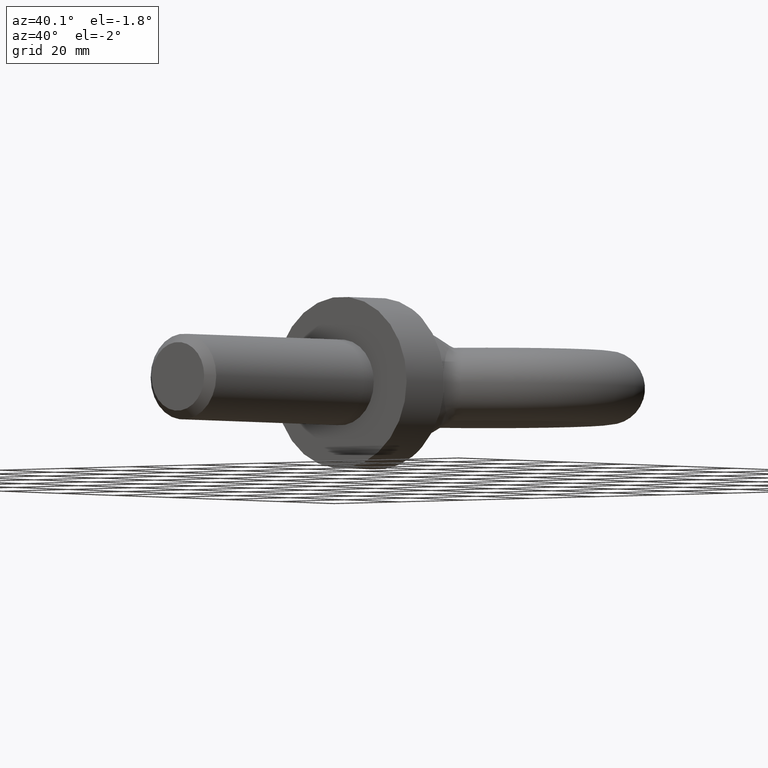
[diagram: clean part render]
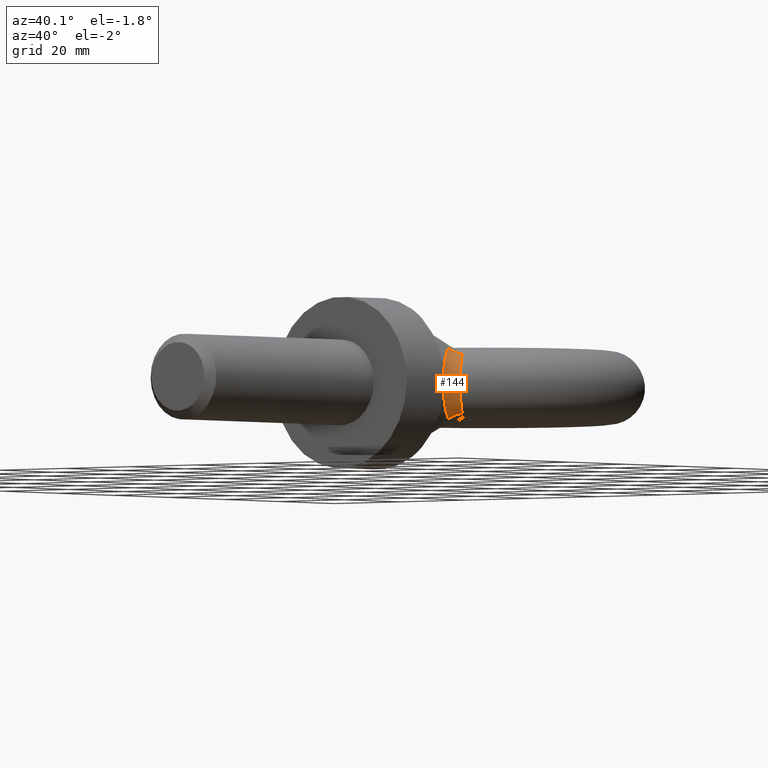
[diagram: same view with one face highlighted and labeled with its STEP entity id]
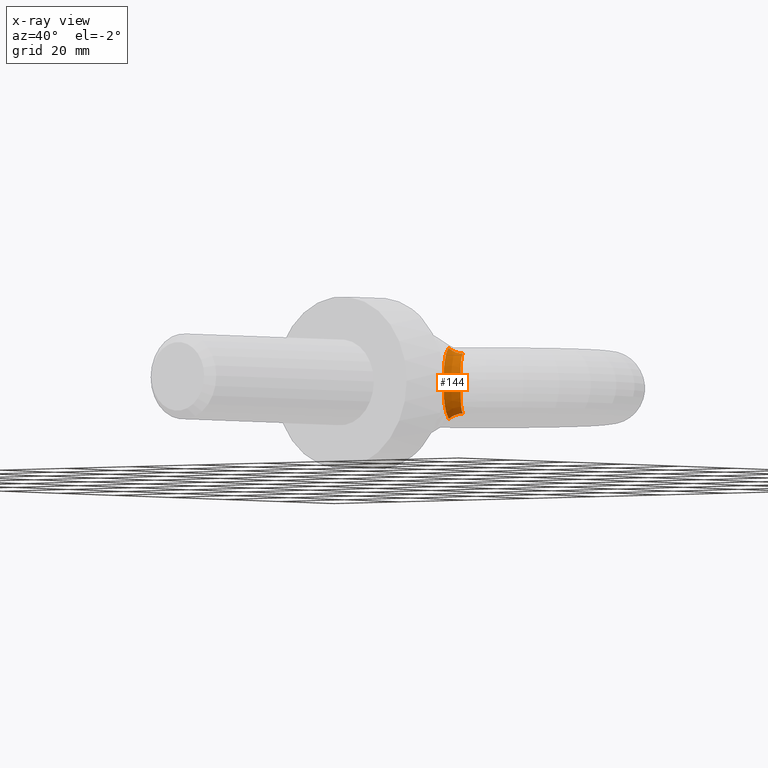
[diagram: x-ray of the same camera — body ghosted, the highlighted face saturated]
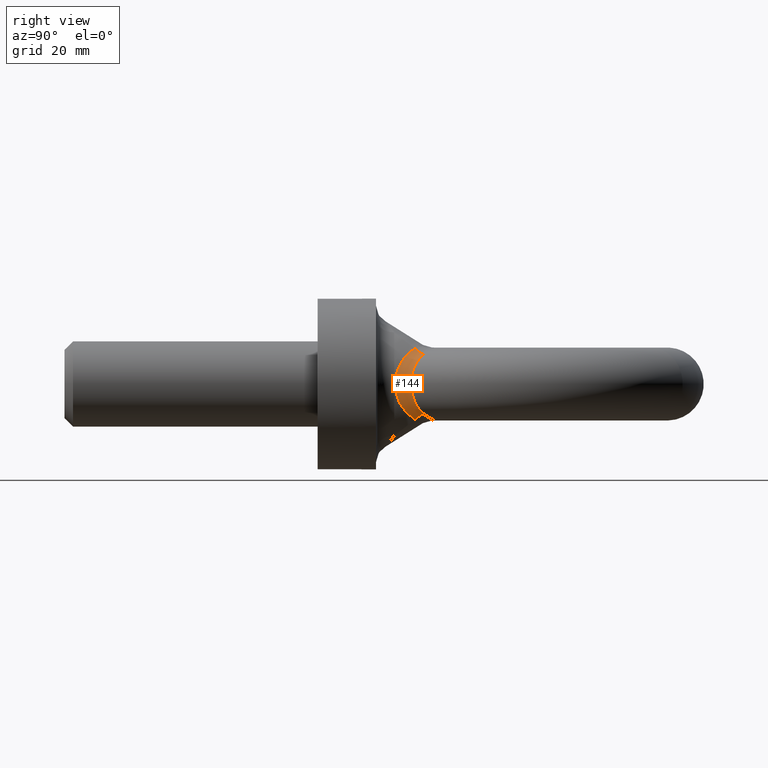
[diagram: same view with one face highlighted and labeled with its STEP entity id]
A machine part, auxiliary view. The second image highlights one B-rep face of the part: STEP entity #144.
The next image is the same camera in x-ray: the body ghosted, the highlighted face saturated — about 0% of this face is hidden behind the body in this view.
A second angle (right view) of the same face is appended — the face is thin or edge-on in the first view.
In plain terms, the highlighted face is a freeform B-spline surface patch.
Its self-contained STEP definition (entity closure, byte-faithful):
#99=(
BOUNDED_SURFACE()
B_SPLINE_SURFACE(3,2,((#1224,#1225,#1226),(#1227,#1228,#1229),(#1230,#1231,
#1232),(#1233,#1234,#1235),(#1236,#1237,#1238),(#1239,#1240,#1241),(#1242,
#1243,#1244),(#1245,#1246,#1247),(#1248,#1249,#1250),(#1251,#1252,#1253)),
 .UNSPECIFIED.,.F.,.F.,.F.)
B_SPLINE_SURFACE_WITH_KNOTS((4,2,2,2,4),(3,3),(0.,0.25,0.5,0.75,1.),(0.,
1.),.UNSPECIFIED.)
GEOMETRIC_REPRESENTATION_ITEM()
RATIONAL_B_SPLINE_SURFACE(((1.,0.91187943100821,1.),(1.,0.903082925011025,
1.),(1.,0.890240384914348,1.),(1.,0.870910150599799,1.),(1.,0.86452953673731,
1.),(1.,0.864561512550926,1.),(1.,0.870945627725839,1.),(1.,0.890274535773212,
1.),(1.,0.90317234339752,1.),(1.,0.91187943100821,1.)))
REPRESENTATION_ITEM('')
SURFACE()
);
#144=ADVANCED_FACE('',(#183),#99,.T.);
#183=FACE_OUTER_BOUND('',#221,.T.);
#221=EDGE_LOOP('',(#360,#361,#362,#363));
#248=B_SPLINE_CURVE_WITH_KNOTS('',3,(#778,#779,#780,#781,#782,#783,#784,
#785,#786,#787),.UNSPECIFIED.,.F.,.F.,(4,2,2,2,4),(0.,0.25,0.5,0.75,1.),
 .UNSPECIFIED.);
#266=B_SPLINE_CURVE_WITH_KNOTS('',3,(#1050,#1051,#1052,#1053,#1054,#1055,
#1056,#1057,#1058,#1059),.UNSPECIFIED.,.F.,.F.,(4,2,2,2,4),(0.,0.25,0.5,
0.75,1.),.UNSPECIFIED.);
#360=ORIENTED_EDGE('',*,*,#524,.T.);
#361=ORIENTED_EDGE('',*,*,#473,.F.);
#362=ORIENTED_EDGE('',*,*,#526,.F.);
#363=ORIENTED_EDGE('',*,*,#512,.F.);
#426=VERTEX_POINT('',#772);
#429=VERTEX_POINT('',#777);
#458=VERTEX_POINT('',#1060);
#459=VERTEX_POINT('',#1061);
#473=EDGE_CURVE('',#429,#426,#248,.T.);
#512=EDGE_CURVE('',#458,#459,#266,.T.);
#524=EDGE_CURVE('',#458,#426,#558,.T.);
#526=EDGE_CURVE('',#459,#429,#560,.T.);
#558=CIRCLE('',#612,4.25);
#560=CIRCLE('',#614,4.25);
#612=AXIS2_PLACEMENT_3D('',#1185,#713,#714);
#614=AXIS2_PLACEMENT_3D('',#1223,#717,#718);
#713=DIRECTION('',(-0.344335857522193,0.745149319782007,0.571126350690343));
#714=DIRECTION('',(0.,-0.608327696906129,0.793685966347449));
#717=DIRECTION('',(0.344335857522189,-0.745149319782009,0.571126350690343));
#718=DIRECTION('',(0.,-0.608327696906128,-0.79368596634745));
#772=CARTESIAN_POINT('',(13.7022846762782,22.7100967158181,8.26119813648309));
#777=CARTESIAN_POINT('',(13.7022846762782,22.7100967158181,-8.26119813648309));
#778=CARTESIAN_POINT('',(13.7022846762782,22.7100967158181,-8.2611981364831));
#779=CARTESIAN_POINT('',(14.2146930636233,21.3066939320552,-7.41130136873594));
#780=CARTESIAN_POINT('',(14.8070006621146,20.1492122750815,-6.24294902891903));
#781=CARTESIAN_POINT('',(15.7053641159949,18.5387990615339,-3.40047337433511));
#782=CARTESIAN_POINT('',(15.9991148607603,18.0911848385743,-1.71983696487196));
#783=CARTESIAN_POINT('',(16.0008808807515,18.0883725369367,1.70332808159318));
#784=CARTESIAN_POINT('',(15.7065916688516,18.5368496111433,3.39482524526136));
#785=CARTESIAN_POINT('',(14.8092039326661,20.1450125633304,6.23773510006701));
#786=CARTESIAN_POINT('',(14.2147992491964,21.306403107134,7.41112524598391));
#787=CARTESIAN_POINT('',(13.7022846762782,22.7100967158181,8.26119813648309));
#1050=CARTESIAN_POINT('',(16.1527065626072,24.8317989650207,6.97038592765761));
#1051=CARTESIAN_POINT('',(16.5958685658466,23.7898492856169,6.18485229933264));
#1052=CARTESIAN_POINT('',(17.137977679481,23.0371557646439,5.13002508564914));
#1053=CARTESIAN_POINT('',(17.9106908755622,22.034332785426,2.72525332469918));
#1054=CARTESIAN_POINT('',(18.1473949697428,21.7821572811045,1.3632933110221));
#1055=CARTESIAN_POINT('',(18.1461409546953,21.7835781414973,-1.3748120027495));
#1056=CARTESIAN_POINT('',(17.9092545312244,22.0360083275929,-2.73120740490868));
#1057=CARTESIAN_POINT('',(17.1364367350327,23.0393448592589,-5.1333309367098));
#1058=CARTESIAN_POINT('',(16.5961862641315,23.7891023226019,-6.18428915834897));
#1059=CARTESIAN_POINT('',(16.1527065626072,24.8317989650207,-6.97038592765761));
#1060=CARTESIAN_POINT('',(16.1527065626072,24.8317989650207,6.97038592765761));
#1061=CARTESIAN_POINT('',(16.1527065626072,24.8317989650207,-6.97038592765761));
#1185=CARTESIAN_POINT('',(17.3419540434146,22.7100967158181,10.4555788914864));
#1223=CARTESIAN_POINT('',(17.3419540434146,22.7100967158181,-10.4555788914864));
#1224=CARTESIAN_POINT('',(13.7022846762782,22.7100967158181,8.26119813648309));
#1225=CARTESIAN_POINT('',(14.4382998576057,23.9858879151552,7.04042006361812));
#1226=CARTESIAN_POINT('',(16.1527065626072,24.8317989650207,6.97038592765761));
#1227=CARTESIAN_POINT('',(14.2619115354349,21.1773702671861,7.33298331703784));
#1228=CARTESIAN_POINT('',(14.8465112656409,22.759940037465,6.17408565926715));
#1229=CARTESIAN_POINT('',(16.5944559465251,23.7931706120682,6.18735626966141));
#1230=CARTESIAN_POINT('',(14.874469609903,20.0214961936732,6.08032464821071));
#1231=CARTESIAN_POINT('',(15.2764674752301,21.9136311028499,5.03200722952523));
#1232=CARTESIAN_POINT('',(17.1379185008159,23.0372243736603,5.13027392208585));
#1233=CARTESIAN_POINT('',(15.7414335638469,18.481775862433,3.22915830497038));
#1234=CARTESIAN_POINT('',(15.8487076924889,20.8127527731547,2.59656805951675));
#1235=CARTESIAN_POINT('',(17.9108792775644,22.0340964724364,2.7246023196607));
#1236=CARTESIAN_POINT('',(16.0006653263604,18.0887157977092,1.61497834686734));
#1237=CARTESIAN_POINT('',(16.0004068160728,20.55955578726,1.301246609068));
#1238=CARTESIAN_POINT('',(18.1473719261347,21.7821833904584,1.36263798016909));
#1239=CARTESIAN_POINT('',(15.9993319691282,18.0908391031687,-1.62813466539909));
#1240=CARTESIAN_POINT('',(15.9995915453509,20.5609913705057,-1.31179861153165));
#1241=CARTESIAN_POINT('',(18.1461641862894,21.7835518191462,-1.37373862393025));
#1242=CARTESIAN_POINT('',(15.7399233194647,18.484244211798,-3.23583752310326));
#1243=CARTESIAN_POINT('',(15.8477536082346,20.8144517296997,-2.60214700679519));
#1244=CARTESIAN_POINT('',(17.9095147464832,22.0356909485649,-2.73023790988076));
#1245=CARTESIAN_POINT('',(14.8728567366326,20.0245752451754,-6.08391017932992));
#1246=CARTESIAN_POINT('',(15.275361230274,21.9158933348667,-5.03522459203219));
#1247=CARTESIAN_POINT('',(17.136498612753,23.0392440788341,-5.13329921404723));
#1248=CARTESIAN_POINT('',(14.2576284631814,21.1891009024921,-7.34008735622654));
#1249=CARTESIAN_POINT('',(14.8433632561913,22.7693941968822,-6.18076658185995));
#1250=CARTESIAN_POINT('',(16.5909227738828,23.8014777058614,-6.19361904950632));
#1251=CARTESIAN_POINT('',(13.7022846762782,22.7100967158181,-8.2611981364831));
#1252=CARTESIAN_POINT('',(14.4382998576057,23.9858879151552,-7.04042006361813));
#1253=CARTESIAN_POINT('',(16.1527065626072,24.8317989650207,-6.97038592765761));